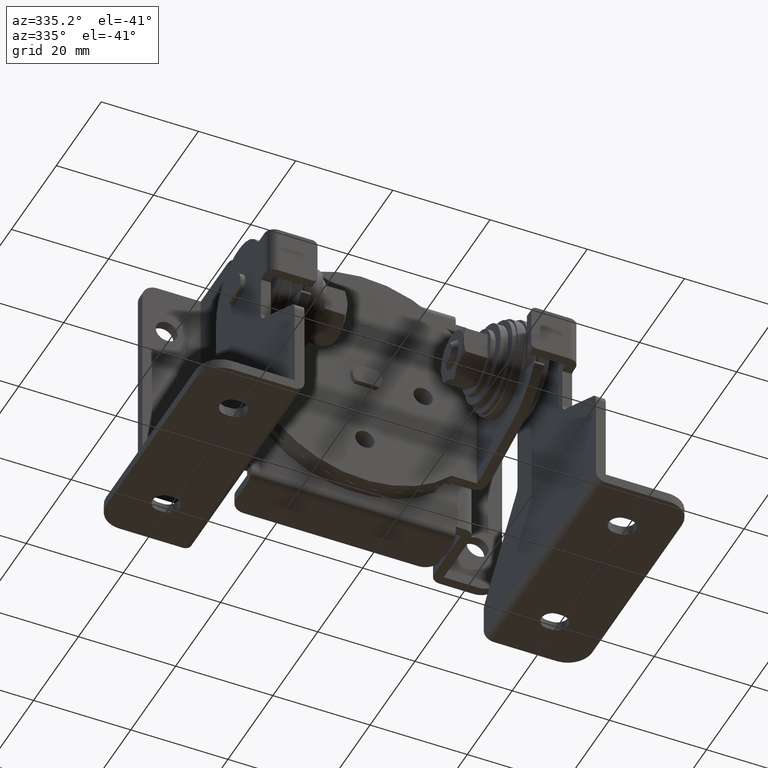
[diagram: clean part render]
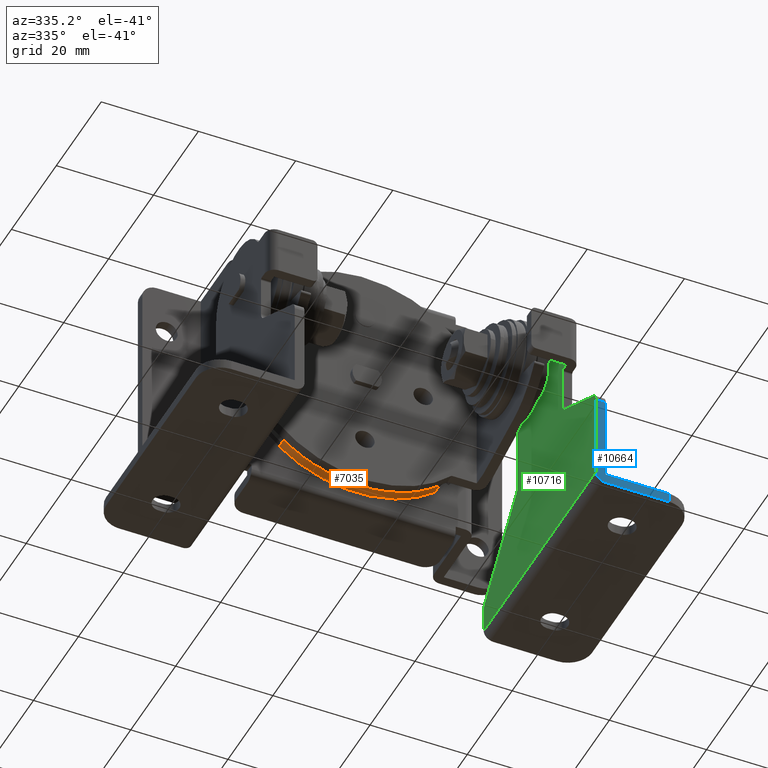
[diagram: same view with three faces highlighted in distinct colors, each labeled with its STEP entity id]
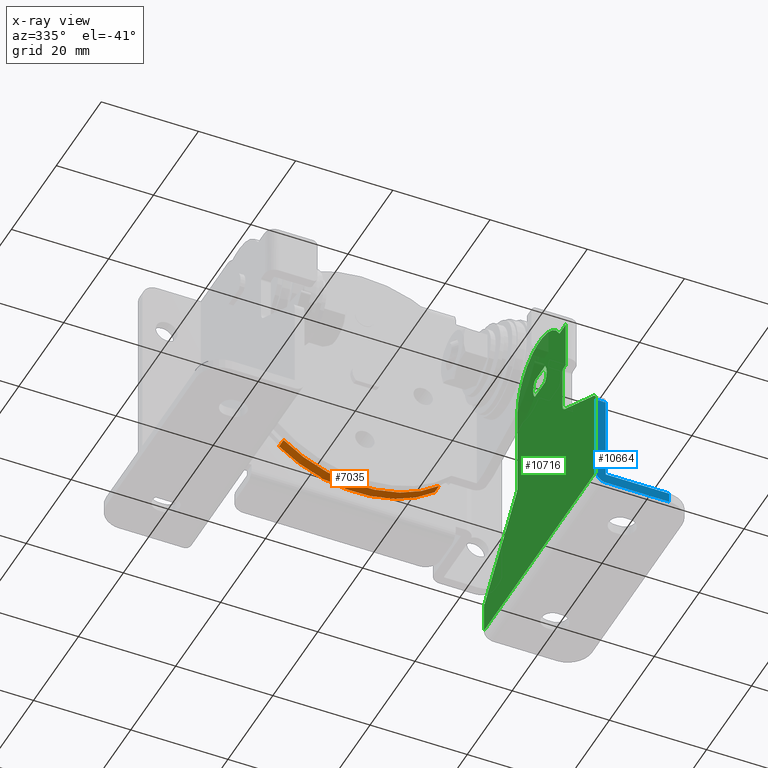
[diagram: x-ray of the same camera — body ghosted, the three highlighted faces saturated]
A machine part, auxiliary view with three faces highlighted in distinct colors.
The next image is the same camera in x-ray (body ghosted, the three faces saturated) — at least one of them is partly hidden behind the body in this view.
Their STEP definitions:

[orange] entity #7035 — the highlighted face is a freeform B-spline surface patch.
#6720=CARTESIAN_POINT('',(-15.823725320537250,-17.0,-19.354837043493500));
#6721=VERTEX_POINT('',#6720);
#6758=CARTESIAN_POINT('',(16.208019248556351,-17.0,-19.034182725781200));
#6759=VERTEX_POINT('',#6758);
#6775=CARTESIAN_POINT('',(-15.823725320537250,-17.0,-19.354837043493500));
#6776=CARTESIAN_POINT('',(0.325923721812546,-17.0,-32.558131387690935));
#6777=CARTESIAN_POINT('',(16.208019248556351,-17.0,-19.034182725781200));
#6785=(BOUNDED_CURVE()B_SPLINE_CURVE(2,(#6775,#6776,#6777),.UNSPECIFIED.,.F.,.U.)CURVE()GEOMETRIC_REPRESENTATION_ITEM()QUASI_UNIFORM_CURVE()RATIONAL_B_SPLINE_CURVE((1.0,0.767818864230067,1.0))REPRESENTATION_ITEM(''));
#6786=EDGE_CURVE('',#6721,#6759,#6785,.T.);
#6866=CARTESIAN_POINT('',(-15.823725320537250,-19.0,-19.354837043493500));
#6867=VERTEX_POINT('',#6866);
#6885=CARTESIAN_POINT('',(16.208019248556351,-19.0,-19.034182725781200));
#6886=VERTEX_POINT('',#6885);
#6887=CARTESIAN_POINT('',(-15.823725320537250,-19.0,-19.354837043493500));
#6888=CARTESIAN_POINT('',(0.325923721812546,-19.000000000000007,-32.558131387690935));
#6889=CARTESIAN_POINT('',(16.208019248556351,-19.0,-19.034182725781200));
#6897=(BOUNDED_CURVE()B_SPLINE_CURVE(2,(#6887,#6888,#6889),.UNSPECIFIED.,.F.,.U.)CURVE()GEOMETRIC_REPRESENTATION_ITEM()QUASI_UNIFORM_CURVE()RATIONAL_B_SPLINE_CURVE((1.0,0.767818864230067,1.0))REPRESENTATION_ITEM(''));
#6898=EDGE_CURVE('',#6867,#6886,#6897,.T.);
#7007=CARTESIAN_POINT('',(-15.992023474088921,-19.050000000000001,-19.216013769879240));
#7008=CARTESIAN_POINT('',(-15.992023474088921,-16.948750000000000,-19.216013769879240));
#7009=CARTESIAN_POINT('',(1.008869392178146,-19.050000000000008,-33.364560968777425));
#7010=CARTESIAN_POINT('',(1.008869392178146,-16.948749999999997,-33.364560968777425));
#7011=CARTESIAN_POINT('',(17.123843116673370,-19.050000000000001,-18.214664337164109));
#7012=CARTESIAN_POINT('',(17.123843116673370,-16.948750000000000,-18.214664337164109));
#7020=(BOUNDED_SURFACE()B_SPLINE_SURFACE(1,2,((#7007,#7009,#7011),(#7008,#7010,#7012)),.UNSPECIFIED.,.F.,.F.,.U.)B_SPLINE_SURFACE_WITH_KNOTS((2,2),(3,3),(0.0,2.101250000000005),(0.0,37.886610869531403),.UNSPECIFIED.)GEOMETRIC_REPRESENTATION_ITEM()RATIONAL_B_SPLINE_SURFACE(((1.0,0.748955720789002,1.0),(1.0,0.748955720789002,1.0)))REPRESENTATION_ITEM('')SURFACE());
#7021=ORIENTED_EDGE('',*,*,#6786,.T.);
#7022=CARTESIAN_POINT('',(16.208019248556351,-19.0,-19.034182725781200));
#7023=CARTESIAN_POINT('',(16.208019248556351,-17.0,-19.034182725781200));
#7024=QUASI_UNIFORM_CURVE('',1,(#7022,#7023),.UNSPECIFIED.,.F.,.U.);
#7025=EDGE_CURVE('',#6886,#6759,#7024,.T.);
#7026=ORIENTED_EDGE('',*,*,#7025,.F.);
#7027=ORIENTED_EDGE('',*,*,#6898,.F.);
#7028=CARTESIAN_POINT('',(-15.823725320537250,-19.0,-19.354837043493500));
#7029=CARTESIAN_POINT('',(-15.823725320537250,-17.0,-19.354837043493500));
#7030=QUASI_UNIFORM_CURVE('',1,(#7028,#7029),.UNSPECIFIED.,.F.,.U.);
#7031=EDGE_CURVE('',#6867,#6721,#7030,.T.);
#7032=ORIENTED_EDGE('',*,*,#7031,.T.);
#7033=EDGE_LOOP('',(#7021,#7026,#7027,#7032));
#7034=FACE_OUTER_BOUND('',#7033,.T.);
#7035=ADVANCED_FACE('',(#7034),#7020,.T.);

[blue] entity #10664 — the highlighted face is a freeform B-spline surface patch.
#9180=CARTESIAN_POINT('',(30.0,-59.000000000000803,-42.0));
#9181=VERTEX_POINT('',#9180);
#9182=CARTESIAN_POINT('',(32.0,-59.000000000000902,-44.0));
#9183=VERTEX_POINT('',#9182);
#9184=CARTESIAN_POINT('',(30.0,-59.000000000000902,-42.0));
#9185=CARTESIAN_POINT('',(30.000000000000004,-59.000000000000917,-44.000000000000014));
#9186=CARTESIAN_POINT('',(32.0,-59.000000000000902,-44.000000000000007));
#9194=(BOUNDED_CURVE()B_SPLINE_CURVE(2,(#9184,#9185,#9186),.UNSPECIFIED.,.F.,.U.)CURVE()GEOMETRIC_REPRESENTATION_ITEM()QUASI_UNIFORM_CURVE()RATIONAL_B_SPLINE_CURVE((1.0,0.707106781186548,1.0))REPRESENTATION_ITEM(''));
#9195=EDGE_CURVE('',#9181,#9183,#9194,.T.);
#9996=CARTESIAN_POINT('',(32.0,-59.0,-24.199999999999100));
#9997=VERTEX_POINT('',#9996);
#10012=CARTESIAN_POINT('',(30.0,-59.0,-24.199999999999100));
#10013=VERTEX_POINT('',#10012);
#10027=CARTESIAN_POINT('',(30.0,-59.0,-24.199999999999100));
#10028=CARTESIAN_POINT('',(32.0,-59.0,-24.199999999999100));
#10029=QUASI_UNIFORM_CURVE('',1,(#10027,#10028),.UNSPECIFIED.,.F.,.U.);
#10030=EDGE_CURVE('',#10013,#9997,#10029,.T.);
#10048=CARTESIAN_POINT('',(32.0,-59.000000000000902,-42.0));
#10049=VERTEX_POINT('',#10048);
#10050=CARTESIAN_POINT('',(32.0,-59.000000000000902,-42.0));
#10051=CARTESIAN_POINT('',(32.0,-59.0,-24.199999999999100));
#10052=QUASI_UNIFORM_CURVE('',1,(#10050,#10051),.UNSPECIFIED.,.F.,.U.);
#10053=EDGE_CURVE('',#10049,#9997,#10052,.T.);
#10087=CARTESIAN_POINT('',(45.0,-59.000000000000902,-44.0));
#10088=VERTEX_POINT('',#10087);
#10089=CARTESIAN_POINT('',(45.0,-59.000000000000902,-44.0));
#10090=CARTESIAN_POINT('',(32.0,-59.000000000000902,-44.0));
#10091=QUASI_UNIFORM_CURVE('',1,(#10089,#10090),.UNSPECIFIED.,.F.,.U.);
#10092=EDGE_CURVE('',#10088,#9183,#10091,.T.);
#10253=CARTESIAN_POINT('',(45.0,-59.000000000000902,-42.0));
#10254=VERTEX_POINT('',#10253);
#10255=CARTESIAN_POINT('',(45.0,-59.000000000000902,-42.0));
#10256=CARTESIAN_POINT('',(32.0,-59.000000000000902,-42.0));
#10257=QUASI_UNIFORM_CURVE('',1,(#10255,#10256),.UNSPECIFIED.,.F.,.U.);
#10258=EDGE_CURVE('',#10254,#10049,#10257,.T.);
#10642=CARTESIAN_POINT('',(29.250750029072911,-59.000000000000902,-44.989009890884297));
#10643=CARTESIAN_POINT('',(45.749250373258441,-59.000000000000902,-44.989009890884297));
#10644=CARTESIAN_POINT('',(29.250750029072911,-59.000000000000902,-23.210990994243780));
#10645=CARTESIAN_POINT('',(45.749250373258441,-59.000000000000902,-23.210990994243780));
#10646=B_SPLINE_SURFACE_WITH_KNOTS('',1,1,((#10642,#10644),(#10643,#10645)),.UNSPECIFIED.,.F.,.F.,.U.,(2,2),(2,2),(0.0,16.498500344185530),(0.0,21.778018896640521),.UNSPECIFIED.);
#10647=CARTESIAN_POINT('',(30.0,-59.0,-24.199999999999100));
#10648=CARTESIAN_POINT('',(30.0,-59.000000000000803,-42.0));
#10649=QUASI_UNIFORM_CURVE('',1,(#10647,#10648),.UNSPECIFIED.,.F.,.U.);
#10650=EDGE_CURVE('',#10013,#9181,#10649,.T.);
#10651=ORIENTED_EDGE('',*,*,#10650,.T.);
#10652=ORIENTED_EDGE('',*,*,#9195,.T.);
#10653=ORIENTED_EDGE('',*,*,#10092,.F.);
#10654=CARTESIAN_POINT('',(45.0,-59.000000000000902,-42.0));
#10655=CARTESIAN_POINT('',(45.0,-59.000000000000902,-44.0));
#10656=QUASI_UNIFORM_CURVE('',1,(#10654,#10655),.UNSPECIFIED.,.F.,.U.);
#10657=EDGE_CURVE('',#10254,#10088,#10656,.T.);
#10658=ORIENTED_EDGE('',*,*,#10657,.F.);
#10659=ORIENTED_EDGE('',*,*,#10258,.T.);
#10660=ORIENTED_EDGE('',*,*,#10053,.T.);
#10661=ORIENTED_EDGE('',*,*,#10030,.F.);
#10662=EDGE_LOOP('',(#10651,#10652,#10653,#10658,#10659,#10660,#10661));
#10663=FACE_OUTER_BOUND('',#10662,.T.);
#10664=ADVANCED_FACE('',(#10663),#10646,.T.);

[green] entity #10716 — the highlighted face is a freeform B-spline surface patch.
#9018=CARTESIAN_POINT('',(30.0,-31.730501156642649,-1.999999999999385));
#9019=VERTEX_POINT('',#9018);
#9025=CARTESIAN_POINT('',(30.0,-36.269498843357198,-1.999999999999310));
#9026=VERTEX_POINT('',#9025);
#9027=CARTESIAN_POINT('',(30.0,-36.269498843357198,-1.999999999999310));
#9028=CARTESIAN_POINT('',(30.0,-31.730501156642649,-1.999999999999385));
#9029=QUASI_UNIFORM_CURVE('',1,(#9027,#9028),.UNSPECIFIED.,.F.,.U.);
#9030=EDGE_CURVE('',#9026,#9019,#9029,.T.);
#9070=CARTESIAN_POINT('',(30.0,-36.269498843357198,2.000000000000690));
#9071=VERTEX_POINT('',#9070);
#9072=CARTESIAN_POINT('',(30.0,-36.269498843357241,2.000000000000723));
#9073=CARTESIAN_POINT('',(30.0,-38.032002495521702,6.894936E-013));
#9074=CARTESIAN_POINT('',(30.0,-36.269498843357248,-1.999999999999350));
#9082=(BOUNDED_CURVE()B_SPLINE_CURVE(2,(#9072,#9073,#9074),.UNSPECIFIED.,.F.,.U.)CURVE()GEOMETRIC_REPRESENTATION_ITEM()QUASI_UNIFORM_CURVE()RATIONAL_B_SPLINE_CURVE((1.0,0.750247551523055,1.0))REPRESENTATION_ITEM(''));
#9083=EDGE_CURVE('',#9071,#9026,#9082,.T.);
#9106=CARTESIAN_POINT('',(30.0,-31.730501156642649,2.000000000000680));
#9107=VERTEX_POINT('',#9106);
#9108=CARTESIAN_POINT('',(30.0,-31.730501156642649,2.000000000000680));
#9109=CARTESIAN_POINT('',(30.0,-36.269498843357198,2.000000000000690));
#9110=QUASI_UNIFORM_CURVE('',1,(#9108,#9109),.UNSPECIFIED.,.F.,.U.);
#9111=EDGE_CURVE('',#9107,#9071,#9110,.T.);
#9149=CARTESIAN_POINT('',(30.0,-31.730501156642742,-1.999999999999316));
#9150=CARTESIAN_POINT('',(30.0,-29.967997504478397,6.462455E-013));
#9151=CARTESIAN_POINT('',(30.0,-31.730501156642688,2.000000000000643));
#9159=(BOUNDED_CURVE()B_SPLINE_CURVE(2,(#9149,#9150,#9151),.UNSPECIFIED.,.F.,.U.)CURVE()GEOMETRIC_REPRESENTATION_ITEM()QUASI_UNIFORM_CURVE()RATIONAL_B_SPLINE_CURVE((1.0,0.750247551523071,1.0))REPRESENTATION_ITEM(''));
#9160=EDGE_CURVE('',#9019,#9107,#9159,.T.);
#9180=CARTESIAN_POINT('',(30.0,-59.000000000000803,-42.0));
#9181=VERTEX_POINT('',#9180);
#9197=CARTESIAN_POINT('',(30.0,-8.999999999999890,-42.0));
#9198=VERTEX_POINT('',#9197);
#9199=CARTESIAN_POINT('',(30.0,-8.999999999999890,-42.0));
#9200=CARTESIAN_POINT('',(30.0,-59.000000000000803,-42.0));
#9201=QUASI_UNIFORM_CURVE('',1,(#9199,#9200),.UNSPECIFIED.,.F.,.U.);
#9202=EDGE_CURVE('',#9198,#9181,#9201,.T.);
#9293=CARTESIAN_POINT('',(30.0,-45.500000000000703,-4.999999999999890));
#9294=VERTEX_POINT('',#9293);
#9295=CARTESIAN_POINT('',(30.0,-45.500000000000597,5.000000000000711));
#9296=VERTEX_POINT('',#9295);
#9297=CARTESIAN_POINT('',(30.0,-45.500000000000703,-4.999999999999890));
#9298=CARTESIAN_POINT('',(30.0,-45.500000000000597,5.000000000000711));
#9299=QUASI_UNIFORM_CURVE('',1,(#9297,#9298),.UNSPECIFIED.,.F.,.U.);
#9300=EDGE_CURVE('',#9294,#9296,#9299,.T.);
#9491=CARTESIAN_POINT('',(30.0,-9.000000000000231,-36.756209079667300));
#9492=VERTEX_POINT('',#9491);
#9498=CARTESIAN_POINT('',(30.0,-9.500324289270230,-35.432965805493701));
#9499=VERTEX_POINT('',#9498);
#9500=CARTESIAN_POINT('',(30.0,-9.000000000000220,-36.756209079667300));
#9501=CARTESIAN_POINT('',(30.000000000000007,-9.000000000000219,-35.999999999999361));
#9502=CARTESIAN_POINT('',(30.0,-9.500324289270230,-35.432965805493701));
#9510=(BOUNDED_CURVE()B_SPLINE_CURVE(2,(#9500,#9501,#9502),.UNSPECIFIED.,.F.,.U.)CURVE()GEOMETRIC_REPRESENTATION_ITEM()QUASI_UNIFORM_CURVE()RATIONAL_B_SPLINE_CURVE((1.0,0.935371010713149,1.0))REPRESENTATION_ITEM(''));
#9511=EDGE_CURVE('',#9492,#9499,#9510,.T.);
#9534=CARTESIAN_POINT('',(30.0,-23.499675710730301,-19.567034194505300));
#9535=VERTEX_POINT('',#9534);
#9536=CARTESIAN_POINT('',(30.0,-23.499675710730301,-19.567034194505300));
#9537=CARTESIAN_POINT('',(30.0,-9.500324289270230,-35.432965805493701));
#9538=QUASI_UNIFORM_CURVE('',1,(#9536,#9537),.UNSPECIFIED.,.F.,.U.);
#9539=EDGE_CURVE('',#9535,#9499,#9538,.T.);
#9579=CARTESIAN_POINT('',(30.0,-24.0,-18.243790920331499));
#9580=VERTEX_POINT('',#9579);
#9581=CARTESIAN_POINT('',(30.0,-24.0,-18.243790920331499));
#9582=CARTESIAN_POINT('',(29.999999999999996,-24.000000000000004,-18.999999999999456));
#9583=CARTESIAN_POINT('',(30.0,-23.499675710730230,-19.567034194505240));
#9591=(BOUNDED_CURVE()B_SPLINE_CURVE(2,(#9581,#9582,#9583),.UNSPECIFIED.,.F.,.U.)CURVE()GEOMETRIC_REPRESENTATION_ITEM()QUASI_UNIFORM_CURVE()RATIONAL_B_SPLINE_CURVE((1.0,0.935371010713160,1.0))REPRESENTATION_ITEM(''));
#9592=EDGE_CURVE('',#9580,#9535,#9591,.T.);
#9615=CARTESIAN_POINT('',(30.0,-24.0,6.252776E-013));
#9616=VERTEX_POINT('',#9615);
#9617=CARTESIAN_POINT('',(30.0,-24.0,6.252776E-013));
#9618=CARTESIAN_POINT('',(30.0,-24.0,-18.243790920331499));
#9619=QUASI_UNIFORM_CURVE('',1,(#9617,#9618),.UNSPECIFIED.,.F.,.U.);
#9620=EDGE_CURVE('',#9616,#9580,#9619,.T.);
#9666=CARTESIAN_POINT('',(30.0,-42.518354199999152,5.238095238095860));
#9667=VERTEX_POINT('',#9666);
#9668=CARTESIAN_POINT('',(30.0,-24.0,6.252776E-013));
#9669=CARTESIAN_POINT('',(30.000000000000007,-24.0,7.563754424946358));
#9670=CARTESIAN_POINT('',(30.0,-31.278193798228081,9.622461795196067));
#9671=CARTESIAN_POINT('',(30.000000000000007,-38.556387596456169,11.681169165445779));
#9672=CARTESIAN_POINT('',(30.0,-42.518354199999187,5.238095238095890));
#9680=(BOUNDED_CURVE()B_SPLINE_CURVE(2,(#9668,#9669,#9670,#9671,#9672),.UNSPECIFIED.,.F.,.U.)B_SPLINE_CURVE_WITH_KNOTS((3,2,3),(0.0,0.500000000000000,1.0),.UNSPECIFIED.)CURVE()GEOMETRIC_REPRESENTATION_ITEM()RATIONAL_B_SPLINE_CURVE((1.0,0.797552700508622,1.0,0.797552700508622,1.0))REPRESENTATION_ITEM(''));
#9681=EDGE_CURVE('',#9616,#9667,#9680,.T.);
#9721=CARTESIAN_POINT('',(30.0,-42.944271909999102,5.000000000000711));
#9722=VERTEX_POINT('',#9721);
#9723=CARTESIAN_POINT('',(30.0,-42.944271909999102,5.000000000000629));
#9724=CARTESIAN_POINT('',(30.000000000000007,-42.664763412811624,5.000000000000629));
#9725=CARTESIAN_POINT('',(30.0,-42.518354199999152,5.238095238095855));
#9733=(BOUNDED_CURVE()B_SPLINE_CURVE(2,(#9723,#9724,#9725),.UNSPECIFIED.,.F.,.U.)CURVE()GEOMETRIC_REPRESENTATION_ITEM()QUASI_UNIFORM_CURVE()RATIONAL_B_SPLINE_CURVE((1.0,0.872871560943976,1.0))REPRESENTATION_ITEM(''));
#9734=EDGE_CURVE('',#9722,#9667,#9733,.T.);
#9761=CARTESIAN_POINT('',(30.0,-45.500000000000597,5.000000000000711));
#9762=CARTESIAN_POINT('',(30.0,-42.944271909999102,5.000000000000711));
#9763=QUASI_UNIFORM_CURVE('',1,(#9761,#9762),.UNSPECIFIED.,.F.,.U.);
#9764=EDGE_CURVE('',#9296,#9722,#9763,.T.);
#9805=CARTESIAN_POINT('',(30.0,-44.500000000000000,-4.999999999999380));
#9806=VERTEX_POINT('',#9805);
#9807=CARTESIAN_POINT('',(30.0,-44.500000000000000,-4.999999999999380));
#9808=CARTESIAN_POINT('',(30.0,-45.500000000000703,-4.999999999999890));
#9809=QUASI_UNIFORM_CURVE('',1,(#9807,#9808),.UNSPECIFIED.,.F.,.U.);
#9810=EDGE_CURVE('',#9806,#9294,#9809,.T.);
#9850=CARTESIAN_POINT('',(30.0,-44.0,-5.499999999999290));
#9851=VERTEX_POINT('',#9850);
#9852=CARTESIAN_POINT('',(30.0,-44.0,-5.499999999999290));
#9853=CARTESIAN_POINT('',(30.0,-44.000000000000078,-4.999999999999369));
#9854=CARTESIAN_POINT('',(30.0,-44.500000000000000,-4.999999999999369));
#9862=(BOUNDED_CURVE()B_SPLINE_CURVE(2,(#9852,#9853,#9854),.UNSPECIFIED.,.F.,.U.)CURVE()GEOMETRIC_REPRESENTATION_ITEM()QUASI_UNIFORM_CURVE()RATIONAL_B_SPLINE_CURVE((1.0,0.707106781186605,1.0))REPRESENTATION_ITEM(''));
#9863=EDGE_CURVE('',#9851,#9806,#9862,.T.);
#9886=CARTESIAN_POINT('',(30.0,-44.0,-13.799999999999320));
#9887=VERTEX_POINT('',#9886);
#9888=CARTESIAN_POINT('',(30.0,-44.0,-13.799999999999320));
#9889=CARTESIAN_POINT('',(30.0,-44.0,-5.499999999999290));
#9890=QUASI_UNIFORM_CURVE('',1,(#9888,#9889),.UNSPECIFIED.,.F.,.U.);
#9891=EDGE_CURVE('',#9887,#9851,#9890,.T.);
#9931=CARTESIAN_POINT('',(30.0,-45.058823529411903,-15.564705882352101));
#9932=VERTEX_POINT('',#9931);
#9933=CARTESIAN_POINT('',(30.0,-45.058823529411903,-15.564705882352101));
#9934=CARTESIAN_POINT('',(30.000000000000004,-44.000000000000007,-14.999999999999336));
#9935=CARTESIAN_POINT('',(30.0,-44.0,-13.799999999999301));
#9943=(BOUNDED_CURVE()B_SPLINE_CURVE(2,(#9933,#9934,#9935),.UNSPECIFIED.,.F.,.U.)CURVE()GEOMETRIC_REPRESENTATION_ITEM()QUASI_UNIFORM_CURVE()RATIONAL_B_SPLINE_CURVE((1.0,0.857492925712537,1.0))REPRESENTATION_ITEM(''));
#9944=EDGE_CURVE('',#9932,#9887,#9943,.T.);
#9967=CARTESIAN_POINT('',(30.0,-57.941176470588303,-22.435294117646151));
#9968=VERTEX_POINT('',#9967);
#9969=CARTESIAN_POINT('',(30.0,-57.941176470588303,-22.435294117646151));
#9970=CARTESIAN_POINT('',(30.0,-45.058823529411903,-15.564705882352101));
#9971=QUASI_UNIFORM_CURVE('',1,(#9969,#9970),.UNSPECIFIED.,.F.,.U.);
#9972=EDGE_CURVE('',#9968,#9932,#9971,.T.);
#10012=CARTESIAN_POINT('',(30.0,-59.0,-24.199999999999100));
#10013=VERTEX_POINT('',#10012);
#10014=CARTESIAN_POINT('',(30.0,-57.941176470588282,-22.435294117646180));
#10015=CARTESIAN_POINT('',(29.999999999999996,-59.0,-22.999999999999140));
#10016=CARTESIAN_POINT('',(30.0,-59.000000000000007,-24.199999999999100));
#10024=(BOUNDED_CURVE()B_SPLINE_CURVE(2,(#10014,#10015,#10016),.UNSPECIFIED.,.F.,.U.)CURVE()GEOMETRIC_REPRESENTATION_ITEM()QUASI_UNIFORM_CURVE()RATIONAL_B_SPLINE_CURVE((1.0,0.857492925712551,1.0))REPRESENTATION_ITEM(''));
#10025=EDGE_CURVE('',#9968,#10013,#10024,.T.);
#10630=CARTESIAN_POINT('',(30.0,-9.000000000000231,-36.756209079667300));
#10631=CARTESIAN_POINT('',(30.0,-8.999999999999890,-42.0));
#10632=QUASI_UNIFORM_CURVE('',1,(#10630,#10631),.UNSPECIFIED.,.F.,.U.);
#10633=EDGE_CURVE('',#9492,#9198,#10632,.T.);
#10647=CARTESIAN_POINT('',(30.0,-59.0,-24.199999999999100));
#10648=CARTESIAN_POINT('',(30.0,-59.000000000000803,-42.0));
#10649=QUASI_UNIFORM_CURVE('',1,(#10647,#10648),.UNSPECIFIED.,.F.,.U.);
#10650=EDGE_CURVE('',#10013,#9181,#10649,.T.);
#10686=CARTESIAN_POINT('',(30.0,-61.497499903091139,-44.597330788568300));
#10687=CARTESIAN_POINT('',(30.0,-61.497499903091139,12.595948586717309));
#10688=CARTESIAN_POINT('',(30.0,-6.502498755805041,-44.597330788568300));
#10689=CARTESIAN_POINT('',(30.0,-6.502498755805041,12.595948586717309));
#10690=B_SPLINE_SURFACE_WITH_KNOTS('',1,1,((#10686,#10688),(#10687,#10689)),.UNSPECIFIED.,.F.,.F.,.U.,(2,2),(2,2),(0.0,57.193279375285613),(0.0,54.995001147286096),.UNSPECIFIED.);
#10691=ORIENTED_EDGE('',*,*,#10633,.T.);
#10692=ORIENTED_EDGE('',*,*,#9202,.T.);
#10693=ORIENTED_EDGE('',*,*,#10650,.F.);
#10694=ORIENTED_EDGE('',*,*,#10025,.F.);
#10695=ORIENTED_EDGE('',*,*,#9972,.T.);
#10696=ORIENTED_EDGE('',*,*,#9944,.T.);
#10697=ORIENTED_EDGE('',*,*,#9891,.T.);
#10698=ORIENTED_EDGE('',*,*,#9863,.T.);
#10699=ORIENTED_EDGE('',*,*,#9810,.T.);
#10700=ORIENTED_EDGE('',*,*,#9300,.T.);
#10701=ORIENTED_EDGE('',*,*,#9764,.T.);
#10702=ORIENTED_EDGE('',*,*,#9734,.T.);
#10703=ORIENTED_EDGE('',*,*,#9681,.F.);
#10704=ORIENTED_EDGE('',*,*,#9620,.T.);
#10705=ORIENTED_EDGE('',*,*,#9592,.T.);
#10706=ORIENTED_EDGE('',*,*,#9539,.T.);
#10707=ORIENTED_EDGE('',*,*,#9511,.F.);
#10708=EDGE_LOOP('',(#10691,#10692,#10693,#10694,#10695,#10696,#10697,#10698,#10699,#10700,#10701,#10702,#10703,#10704,#10705,#10706,#10707));
#10709=FACE_OUTER_BOUND('',#10708,.T.);
#10710=ORIENTED_EDGE('',*,*,#9160,.T.);
#10711=ORIENTED_EDGE('',*,*,#9111,.T.);
#10712=ORIENTED_EDGE('',*,*,#9083,.T.);
#10713=ORIENTED_EDGE('',*,*,#9030,.T.);
#10714=EDGE_LOOP('',(#10710,#10711,#10712,#10713));
#10715=FACE_BOUND('',#10714,.T.);
#10716=ADVANCED_FACE('',(#10709,#10715),#10690,.T.);